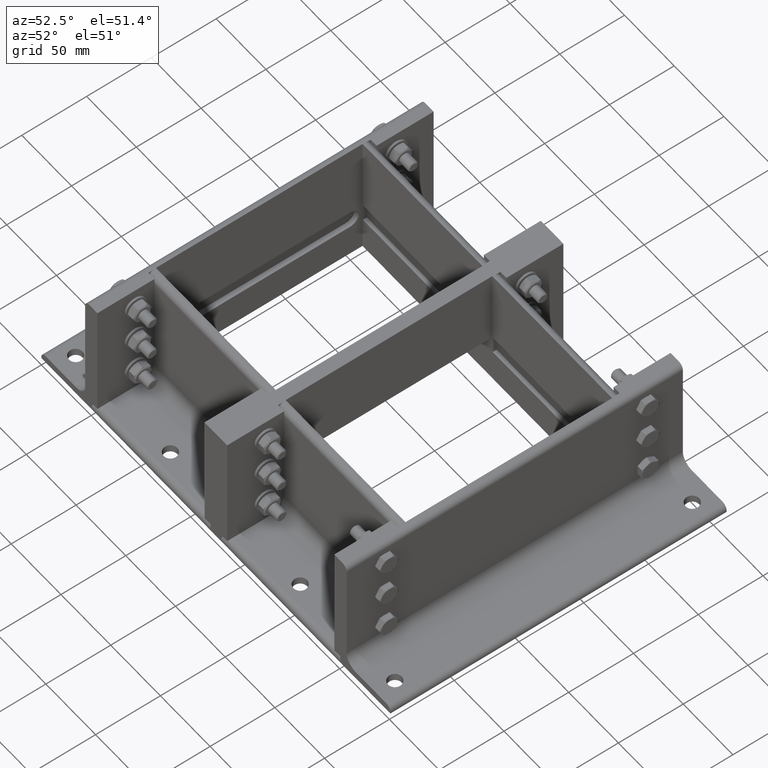
[diagram: clean part render]
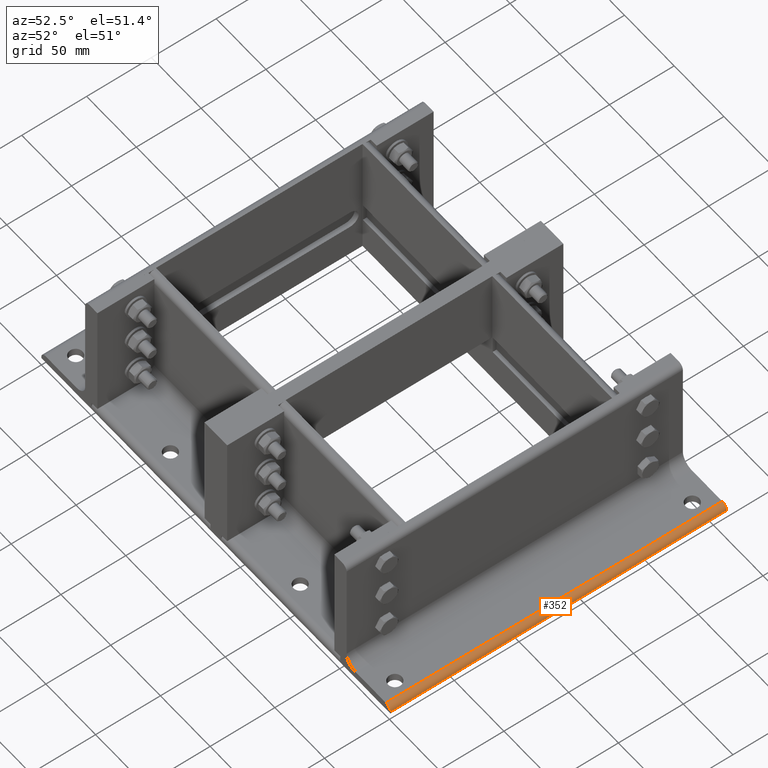
[diagram: same view with one face highlighted and labeled with its STEP entity id]
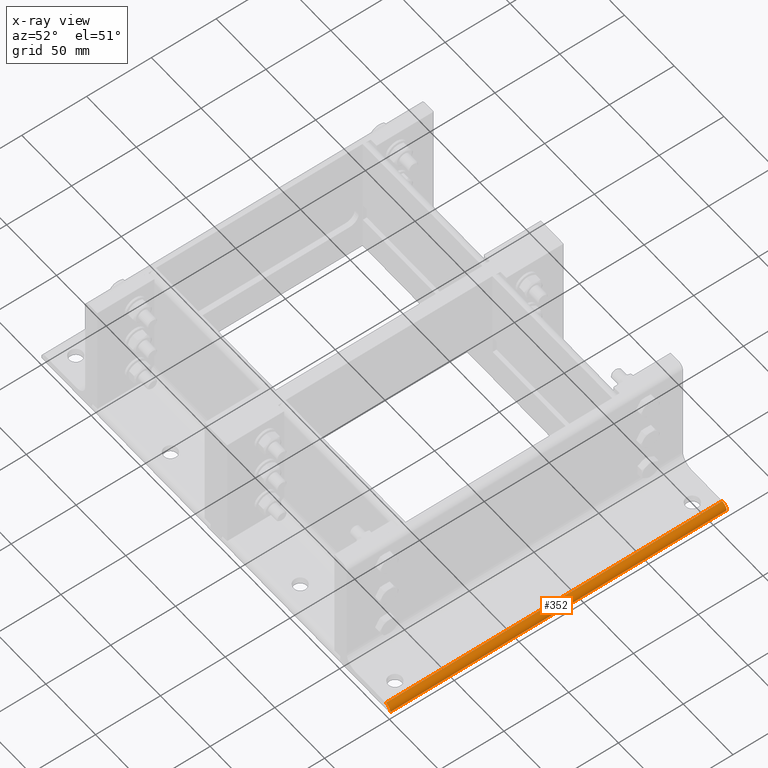
[diagram: x-ray of the same camera — body ghosted, the highlighted face saturated]
A machine part, auxiliary view. The second image highlights one B-rep face of the part: STEP entity #352.
The next image is the same camera in x-ray: the body ghosted, the highlighted face saturated — about 0% of this face is hidden behind the body in this view.
In plain terms, the highlighted cylindrical surface (edge-blend (fillet) strip) has radius 4.5 mm, axis along (0, 1, 0).
Its self-contained STEP definition (entity closure, byte-faithful):
#289=CARTESIAN_POINT('',(45.499999999999986,0.0,5.999999999999991));
#290=VERTEX_POINT('',#289);
#297=CARTESIAN_POINT('',(45.499999999999986,259.5,5.999999999999991));
#298=VERTEX_POINT('',#297);
#299=CARTESIAN_POINT('',(45.499999999999986,259.5,5.999999999999991));
#300=DIRECTION('',(0.0,-1.0,0.0));
#301=VECTOR('',#300,259.5);
#302=LINE('',#299,#301);
#303=EDGE_CURVE('',#298,#290,#302,.T.);
#320=CARTESIAN_POINT('',(45.499999999999986,0.0,1.499999999999991));
#321=DIRECTION('',(0.0,1.0,0.0));
#322=DIRECTION('',(0.707106781186547,0.0,0.707106781186548));
#323=AXIS2_PLACEMENT_3D('',#320,#321,#322);
#324=CYLINDRICAL_SURFACE('',#323,4.5);
#325=CARTESIAN_POINT('',(49.999999999999993,259.5,1.499999999999991));
#326=VERTEX_POINT('',#325);
#327=CARTESIAN_POINT('',(45.499999999999986,259.5,1.499999999999991));
#328=DIRECTION('',(0.0,-1.0,0.0));
#329=DIRECTION('',(0.707106781186547,0.0,0.707106781186548));
#330=AXIS2_PLACEMENT_3D('',#327,#328,#329);
#331=CIRCLE('',#330,4.5);
#332=EDGE_CURVE('',#326,#298,#331,.T.);
#333=ORIENTED_EDGE('',*,*,#332,.T.);
#334=ORIENTED_EDGE('',*,*,#303,.T.);
#335=CARTESIAN_POINT('',(49.999999999999993,0.0,1.499999999999991));
#336=VERTEX_POINT('',#335);
#337=CARTESIAN_POINT('',(45.499999999999986,0.0,1.499999999999991));
#338=DIRECTION('',(0.0,1.0,0.0));
#339=DIRECTION('',(0.707106781186547,0.0,0.707106781186548));
#340=AXIS2_PLACEMENT_3D('',#337,#338,#339);
#341=CIRCLE('',#340,4.5);
#342=EDGE_CURVE('',#290,#336,#341,.T.);
#343=ORIENTED_EDGE('',*,*,#342,.T.);
#344=CARTESIAN_POINT('',(49.999999999999993,0.0,1.499999999999991));
#345=DIRECTION('',(0.0,1.0,0.0));
#346=VECTOR('',#345,259.5);
#347=LINE('',#344,#346);
#348=EDGE_CURVE('',#336,#326,#347,.T.);
#349=ORIENTED_EDGE('',*,*,#348,.T.);
#350=EDGE_LOOP('',(#333,#334,#343,#349));
#351=FACE_OUTER_BOUND('',#350,.T.);
#352=ADVANCED_FACE('',(#351),#324,.T.);